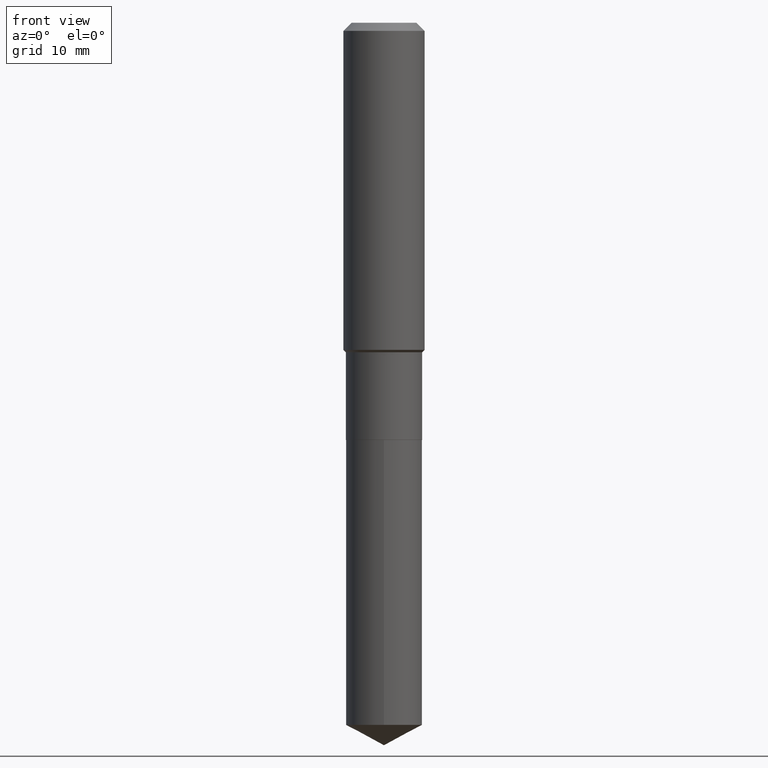
[diagram: clean part render]
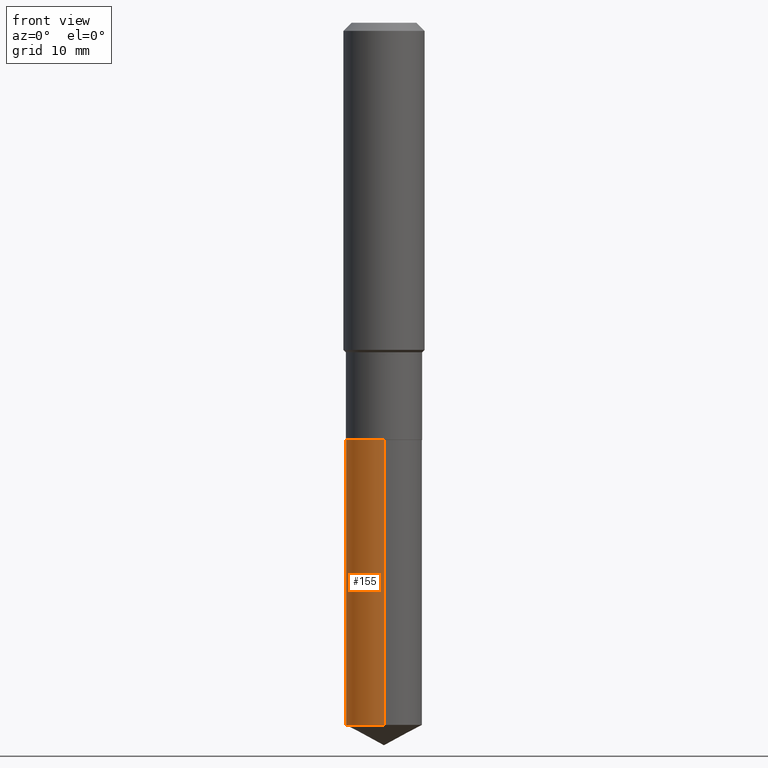
[diagram: same view with one face highlighted and labeled with its STEP entity id]
A machine part, front view. The second image highlights one B-rep face of the part: STEP entity #155.
In plain terms, the highlighted cylindrical surface (partial cylindrical patch) has radius 4.7003 mm, axis along (-0, 0, 1).
Its self-contained STEP definition (entity closure, byte-faithful):
#13 = LINE ( 'NONE', #299, #365 ) ;
#17 = DIRECTION ( 'NONE',  ( -2.445517431145861124E-29, 3.491411705131827095E-15, 1.000000000000000000 ) ) ;
#18 = DIRECTION ( 'NONE',  ( -6.982962677686265133E-15, -1.000000000000000000, 2.952551195530141356E-15 ) ) ;
#20 = VERTEX_POINT ( 'NONE', #438 ) ;
#37 = VECTOR ( 'NONE', #179, 39.37007874015748143 ) ;
#42 = CIRCLE ( 'NONE', #102, 0.1850499999999999923 ) ;
#50 = CARTESIAN_POINT ( 'NONE',  ( 8.328128747852220188E-29, -1.189016850487806495E-14, -3.405507169671043499 ) ) ;
#66 = FACE_OUTER_BOUND ( 'NONE', #430, .T. ) ;
#78 = AXIS2_PLACEMENT_3D ( 'NONE', #236, #17, #123 ) ;
#85 = EDGE_CURVE ( 'NONE', #138, #466, #13, .T. ) ;
#98 = EDGE_CURVE ( 'NONE', #466, #242, #434, .T. ) ;
#102 = AXIS2_PLACEMENT_3D ( 'NONE', #50, #233, #467 ) ;
#123 = DIRECTION ( 'NONE',  ( -6.982962677686265133E-15, -1.000000000000000000, 2.952551195530141356E-15 ) ) ;
#128 = CARTESIAN_POINT ( 'NONE',  ( -1.292197243505793786E-15, -0.1850500000000070422, -2.023599999999999177 ) ) ;
#129 = AXIS2_PLACEMENT_3D ( 'NONE', #267, #301, #18 ) ;
#138 = VERTEX_POINT ( 'NONE', #483 ) ;
#141 = CARTESIAN_POINT ( 'NONE',  ( 1.314859332524148564E-15, 0.1850499999999929146, -2.023600000000000065 ) ) ;
#155 = ADVANCED_FACE ( 'NONE', ( #66 ), #379, .T. ) ;
#179 = DIRECTION ( 'NONE',  ( -2.445517431145861124E-29, 3.491411705131826701E-15, 1.000000000000000000 ) ) ;
#222 = EDGE_CURVE ( 'NONE', #138, #20, #42, .T. ) ;
#233 = DIRECTION ( 'NONE',  ( -2.445517431145861124E-29, 3.491411705131827095E-15, 1.000000000000000000 ) ) ;
#236 = CARTESIAN_POINT ( 'NONE',  ( 4.948650676196241876E-29, -7.065361637282988500E-15, -2.023599999999999621 ) ) ;
#242 = VERTEX_POINT ( 'NONE', #128 ) ;
#267 = CARTESIAN_POINT ( 'NONE',  ( 4.948650676196241876E-29, -7.065361637282988500E-15, -2.023599999999999621 ) ) ;
#282 = ORIENTED_EDGE ( 'NONE', *, *, #85, .F. ) ;
#297 = DIRECTION ( 'NONE',  ( -2.445517431145861124E-29, 3.491411705131826701E-15, 1.000000000000000000 ) ) ;
#299 = CARTESIAN_POINT ( 'NONE',  ( 1.314859332524114446E-15, 0.1850499999999929146, -2.023600000000000065 ) ) ;
#301 = DIRECTION ( 'NONE',  ( -2.445517431145861124E-29, 3.491411705131827095E-15, 1.000000000000000000 ) ) ;
#331 = CARTESIAN_POINT ( 'NONE',  ( -1.292197243505793786E-15, -0.1850500000000070422, -2.023599999999999177 ) ) ;
#349 = EDGE_CURVE ( 'NONE', #20, #242, #471, .T. ) ;
#350 = ORIENTED_EDGE ( 'NONE', *, *, #222, .T. ) ;
#365 = VECTOR ( 'NONE', #297, 39.37007874015748143 ) ;
#377 = ORIENTED_EDGE ( 'NONE', *, *, #98, .F. ) ;
#379 = CYLINDRICAL_SURFACE ( 'NONE', #129, 0.1850499999999999923 ) ;
#396 = ORIENTED_EDGE ( 'NONE', *, *, #349, .T. ) ;
#430 = EDGE_LOOP ( 'NONE', ( #282, #350, #396, #377 ) ) ;
#434 = CIRCLE ( 'NONE', #78, 0.1850499999999999923 ) ;
#438 = CARTESIAN_POINT ( 'NONE',  ( -1.292197243505760062E-15, -0.1850500000000118439, -3.405507169671043055 ) ) ;
#466 = VERTEX_POINT ( 'NONE', #141 ) ;
#467 = DIRECTION ( 'NONE',  ( -6.982962677686265133E-15, -1.000000000000000000, 2.952551195530141356E-15 ) ) ;
#471 = LINE ( 'NONE', #331, #37 ) ;
#483 = CARTESIAN_POINT ( 'NONE',  ( 1.314859332524147972E-15, 0.1850499999999881129, -3.405507169671043943 ) ) ;